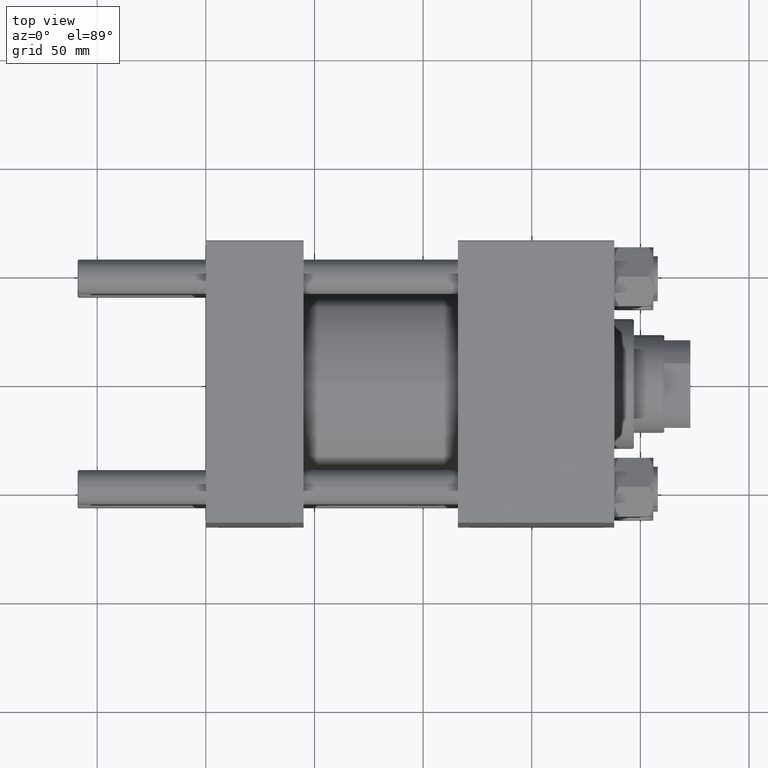
[diagram: clean part render]
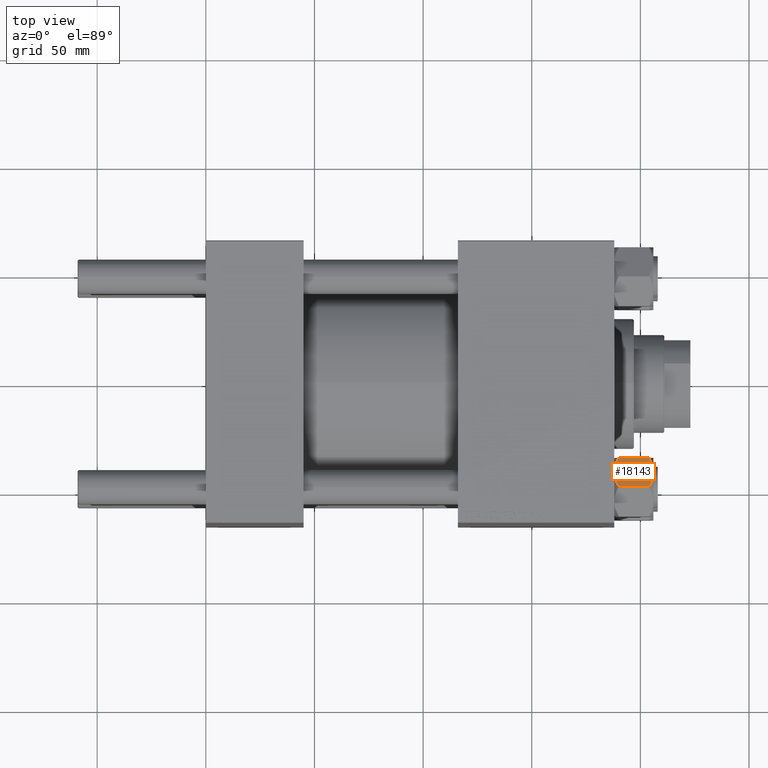
[diagram: same view with one face highlighted and labeled with its STEP entity id]
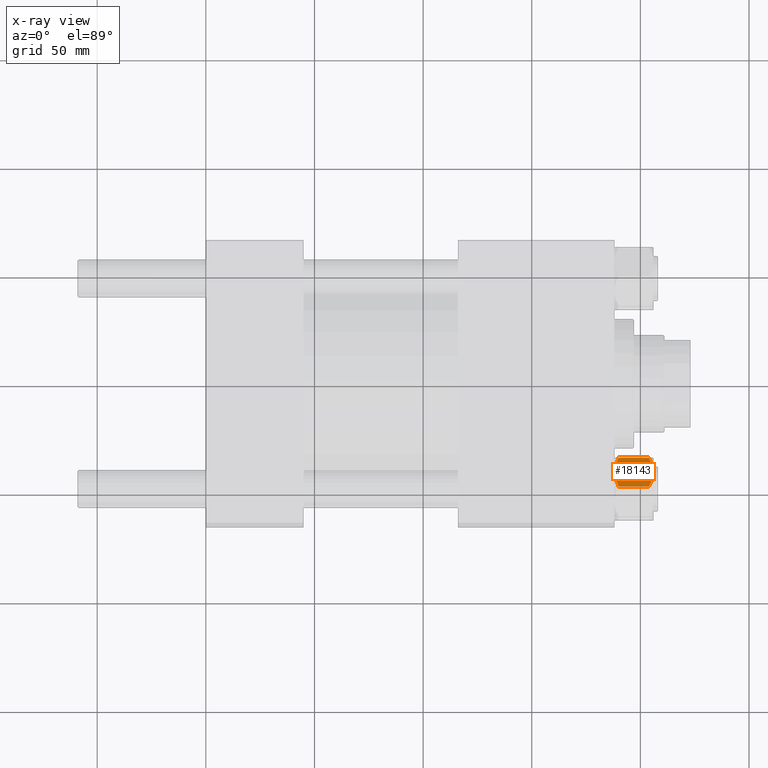
[diagram: x-ray of the same camera — body ghosted, the highlighted face saturated]
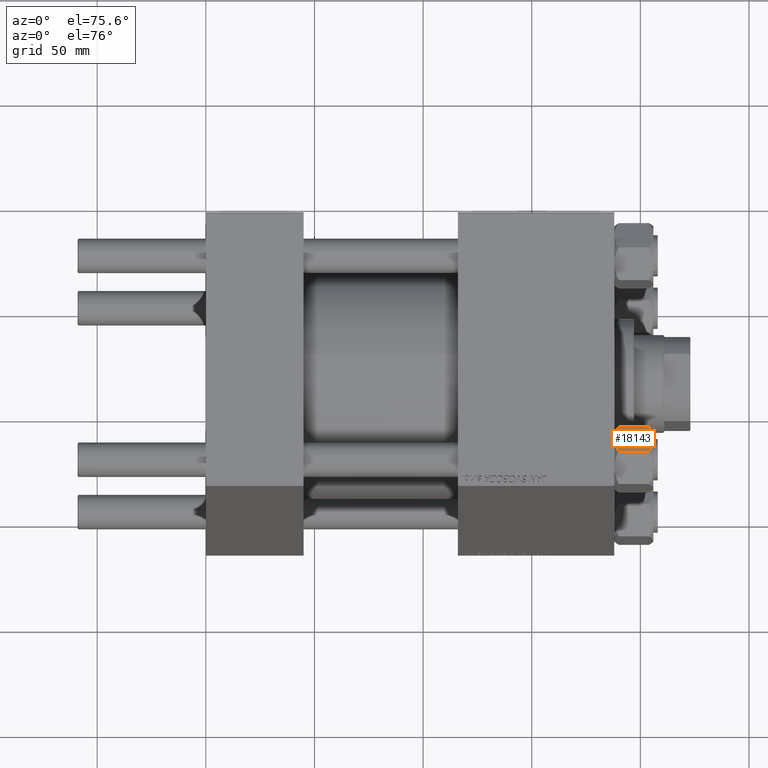
[diagram: same view with one face highlighted and labeled with its STEP entity id]
A machine part, top view. The second image highlights one B-rep face of the part: STEP entity #18143.
The next image is the same camera in x-ray: the body ghosted, the highlighted face saturated — about 0% of this face is hidden behind the body in this view.
A second angle (auxiliary view) of the same face is appended — the face is thin or edge-on in the first view.
In plain terms, the highlighted planar face has unit normal (-0, -0.5, -0.866).
Its self-contained STEP definition (entity closure, byte-faithful):
#648 = CARTESIAN_POINT ( 'NONE',  ( 9.114548888011784200, 11.26777185211903642, -17.08577173959729834 ) ) ;
#692 = ORIENTED_EDGE ( 'NONE', *, *, #7000, .F. ) ;
#1023 = CARTESIAN_POINT ( 'NONE',  ( 14.31545111198821196, 2.259544954993908394, -0.9142282604026947812 ) ) ;
#1061 = VERTEX_POINT ( 'NONE', #23839 ) ;
#1633 = B_SPLINE_CURVE_WITH_KNOTS ( 'NONE', 3,
 ( #27065, #4462, #648, #27815, #23501, #12581, #4708, #42302 ),
 .UNSPECIFIED., .F., .F.,
 ( 4, 2, 2, 4 ),
 ( 4.472842641837737786E-07, 0.003945636373369299649, 0.005918230917921855731, 0.007890825462474411814 ),
 .UNSPECIFIED. ) ;
#2462 = EDGE_CURVE ( 'NONE', #36291, #18161, #12582, .T. ) ;
#2475 = CARTESIAN_POINT ( 'NONE',  ( 11.71499999999999808, 6.763658403556471299, -18.00000000000000000 ) ) ;
#2514 = PLANE ( 'NONE',  #10958 ) ;
#3685 = CARTESIAN_POINT ( 'NONE',  ( 14.30591678195075822, 2.276058899034911320, -17.05261278537718539 ) ) ;
#3996 = VERTEX_POINT ( 'NONE', #4825 ) ;
#4439 = CARTESIAN_POINT ( 'NONE',  ( 11.71499999999999808, 6.763658403556471299, -18.00000000000000000 ) ) ;
#4462 = CARTESIAN_POINT ( 'NONE',  ( 8.502393313253756801, 12.32805640973648131, -16.58801072835992585 ) ) ;
#4708 = CARTESIAN_POINT ( 'NONE',  ( 11.38181071908714337, 7.340759166634874155, -17.99999999999999289 ) ) ;
#4825 = CARTESIAN_POINT ( 'NONE',  ( 7.903528262322678799, 13.36532110482642466, -16.00000000000000000 ) ) ;
#4866 = CARTESIAN_POINT ( 'NONE',  ( 7.809999999999995168, 13.52731680711294082, -1.999999999999998224 ) ) ;
#5263 = VECTOR ( 'NONE', #25054, 1000.000000000000000 ) ;
#5826 = DIRECTION ( 'NONE',  ( 0.5000000000000004441, -0.8660254037844383745, 0.000000000000000000 ) ) ;
#5925 = VECTOR ( 'NONE', #32548, 1000.000000000000114 ) ;
#6414 = VERTEX_POINT ( 'NONE', #47052 ) ;
#6754 = ORIENTED_EDGE ( 'NONE', *, *, #22801, .F. ) ;
#7000 = EDGE_CURVE ( 'NONE', #6414, #3996, #44611, .T. ) ;
#7335 = EDGE_CURVE ( 'NONE', #48386, #30786, #36681, .T. ) ;
#7907 = CARTESIAN_POINT ( 'NONE',  ( 12.04818928091285635, 6.186557640478070219, -1.789310043688750938E-15 ) ) ;
#8004 = CARTESIAN_POINT ( 'NONE',  ( 13.99051971937273819, 2.822342635978020819, -17.26828031537188934 ) ) ;
#8893 = CARTESIAN_POINT ( 'NONE',  ( 13.36540581434586983, 3.905071680002333512, -0.3836066851120609744 ) ) ;
#9075 = EDGE_CURVE ( 'NONE', #23734, #1061, #16304, .T. ) ;
#9933 = ORIENTED_EDGE ( 'NONE', *, *, #43586, .T. ) ;
#10325 = CARTESIAN_POINT ( 'NONE',  ( 7.809999999999995168, 13.52731680711294082, -16.00000000000000000 ) ) ;
#10958 = AXIS2_PLACEMENT_3D ( 'NONE', #41122, #32268, #5826 ) ;
#10959 = CARTESIAN_POINT ( 'NONE',  ( 7.809999999999995168, 13.52731680711294082, -16.00000000000000000 ) ) ;
#12211 = CARTESIAN_POINT ( 'NONE',  ( 14.92760668674625180, 1.199260397376467502, -1.411989271640067489 ) ) ;
#12581 = CARTESIAN_POINT ( 'NONE',  ( 11.04378428799594580, 7.926238119586004771, -17.94910618364698252 ) ) ;
#12582 = B_SPLINE_CURVE_WITH_KNOTS ( 'NONE', 3,
 ( #4439, #38220, #42282, #8004, #3685, #35179, #23481, #49898 ),
 .UNSPECIFIED., .F., .F.,
 ( 4, 2, 2, 4 ),
 ( 0.007890825462474411814, 0.01181022244528551722, 0.01376992093669107166, 0.01572961942809662783 ),
 .UNSPECIFIED. ) ;
#13102 = CARTESIAN_POINT ( 'NONE',  ( 15.62000000000000455, 5.009671660077301770E-15, -16.00000000000000000 ) ) ;
#13697 = CARTESIAN_POINT ( 'NONE',  ( 15.52647173767732447, 0.1619957022865230467, -16.00000000000000000 ) ) ;
#13851 = LINE ( 'NONE', #25272, #25474 ) ;
#14069 = DIRECTION ( 'NONE',  ( -0.5000000000000004441, 0.8660254037844383745, 0.000000000000000000 ) ) ;
#14811 = VECTOR ( 'NONE', #14069, 1000.000000000000114 ) ;
#15191 = VERTEX_POINT ( 'NONE', #13102 ) ;
#15315 = CARTESIAN_POINT ( 'NONE',  ( 9.124083218049234389, 11.25125790807803483, -0.9473872146228138336 ) ) ;
#15964 = CARTESIAN_POINT ( 'NONE',  ( 11.71499999999999808, 6.763658403556471299, 0.000000000000000000 ) ) ;
#16304 = LINE ( 'NONE', #4866, #5925 ) ;
#17693 = DIRECTION ( 'NONE',  ( 0.5000000000000004441, -0.8660254037844383745, 0.000000000000000000 ) ) ;
#18079 = EDGE_CURVE ( 'NONE', #1061, #48133, #27471, .T. ) ;
#18143 = ADVANCED_FACE ( 'NONE', ( #21071 ), #2514, .F. ) ;
#18161 = VERTEX_POINT ( 'NONE', #13697 ) ;
#18553 = EDGE_CURVE ( 'NONE', #18161, #15191, #50061, .T. ) ;
#18862 = CARTESIAN_POINT ( 'NONE',  ( 7.903528262322678799, 13.36532110482642466, -2.000000000000000000 ) ) ;
#21071 = FACE_OUTER_BOUND ( 'NONE', #49498, .T. ) ;
#22801 = EDGE_CURVE ( 'NONE', #3996, #36291, #1633, .T. ) ;
#23481 = CARTESIAN_POINT ( 'NONE',  ( 15.22736220980735489, 0.6800686015852402955, -16.29368822085855228 ) ) ;
#23501 = CARTESIAN_POINT ( 'NONE',  ( 10.38662926516871998, 9.064464007571849891, -17.75691532989869614 ) ) ;
#23675 = CARTESIAN_POINT ( 'NONE',  ( 11.71499999999999808, 6.763658403556471299, 0.000000000000000000 ) ) ;
#23734 = VERTEX_POINT ( 'NONE', #47950 ) ;
#23839 = CARTESIAN_POINT ( 'NONE',  ( 15.52647173767732447, 0.1619957022865230467, -2.000000000000000000 ) ) ;
#24379 = CARTESIAN_POINT ( 'NONE',  ( 13.04337073483127973, 4.462852799541093596, -0.2430846701013001376 ) ) ;
#25054 = DIRECTION ( 'NONE',  ( -0.000000000000000000, -0.000000000000000000, 1.000000000000000000 ) ) ;
#25272 = CARTESIAN_POINT ( 'NONE',  ( 15.62000000000000455, 5.009671660077301770E-15, -18.00000000000000000 ) ) ;
#25474 = VECTOR ( 'NONE', #40772, 1000.000000000000000 ) ;
#26505 = EDGE_CURVE ( 'NONE', #48133, #48386, #41877, .T. ) ;
#27065 = CARTESIAN_POINT ( 'NONE',  ( 7.903528262322678799, 13.36532110482642466, -16.00000000000000000 ) ) ;
#27471 = B_SPLINE_CURVE_WITH_KNOTS ( 'NONE', 3,
 ( #43690, #12211, #1023, #8893, #24379, #42699, #7907, #39875 ),
 .UNSPECIFIED., .F., .F.,
 ( 4, 2, 2, 4 ),
 ( 4.472842642033888912E-07, 0.003945636373369316996, 0.005918230917921872211, 0.007890825462474429161 ),
 .UNSPECIFIED. ) ;
#27815 = CARTESIAN_POINT ( 'NONE',  ( 10.06459418565412456, 9.622245127110609531, -17.61639331488793303 ) ) ;
#28370 = CARTESIAN_POINT ( 'NONE',  ( 7.809999999999995168, 13.52731680711294082, -18.00000000000000000 ) ) ;
#29622 = VECTOR ( 'NONE', #46003, 1000.000000000000114 ) ;
#30295 = CARTESIAN_POINT ( 'NONE',  ( 11.05297796109638142, 7.910314210667887203, -1.616138863361205047E-15 ) ) ;
#30786 = VERTEX_POINT ( 'NONE', #48134 ) ;
#30995 = VECTOR ( 'NONE', #17693, 1000.000000000000114 ) ;
#31322 = CARTESIAN_POINT ( 'NONE',  ( 9.439480280627261521, 10.70497417113492489, -0.7317196846281144307 ) ) ;
#32268 = DIRECTION ( 'NONE',  ( -0.8660254037844383745, -0.5000000000000004441, 0.000000000000000000 ) ) ;
#32417 = ORIENTED_EDGE ( 'NONE', *, *, #26505, .F. ) ;
#32548 = DIRECTION ( 'NONE',  ( -0.5000000000000004441, 0.8660254037844383745, 0.000000000000000000 ) ) ;
#35179 = CARTESIAN_POINT ( 'NONE',  ( 14.92394044919337581, 1.205610507090648209, -16.56553707812498999 ) ) ;
#36291 = VERTEX_POINT ( 'NONE', #2475 ) ;
#36681 = LINE ( 'NONE', #45299, #14811 ) ;
#38220 = CARTESIAN_POINT ( 'NONE',  ( 12.37702203890362362, 5.617002596445060725, -17.99999999999999645 ) ) ;
#38814 = ORIENTED_EDGE ( 'NONE', *, *, #2462, .F. ) ;
#38940 = ORIENTED_EDGE ( 'NONE', *, *, #41288, .F. ) ;
#39182 = CARTESIAN_POINT ( 'NONE',  ( 8.202637790192643052, 12.84724820552770197, -1.706311779141444163 ) ) ;
#39308 = ORIENTED_EDGE ( 'NONE', *, *, #18079, .F. ) ;
#39875 = CARTESIAN_POINT ( 'NONE',  ( 11.71499999999999808, 6.763658403556471299, 0.000000000000000000 ) ) ;
#40772 = DIRECTION ( 'NONE',  ( -0.000000000000000000, -0.000000000000000000, 1.000000000000000000 ) ) ;
#41122 = CARTESIAN_POINT ( 'NONE',  ( 7.809999999999995168, 13.52731680711294082, -18.00000000000000000 ) ) ;
#41288 = EDGE_CURVE ( 'NONE', #15191, #23734, #13851, .T. ) ;
#41877 = B_SPLINE_CURVE_WITH_KNOTS ( 'NONE', 3,
 ( #23675, #30295, #45785, #31322, #15315, #49844, #39182, #18862 ),
 .UNSPECIFIED., .F., .F.,
 ( 4, 2, 2, 4 ),
 ( 0.007890825462474429161, 0.01181022244528553977, 0.01376992093669109421, 0.01572961942809664865 ),
 .UNSPECIFIED. ) ;
#42282 = CARTESIAN_POINT ( 'NONE',  ( 13.02784502466562166, 4.489744118371596038, -17.80281335400754017 ) ) ;
#42302 = CARTESIAN_POINT ( 'NONE',  ( 11.71499999999999808, 6.763658403556471299, -18.00000000000000000 ) ) ;
#42699 = CARTESIAN_POINT ( 'NONE',  ( 12.38621571200405391, 5.601078687526936939, -0.05089381635301767209 ) ) ;
#42924 = ORIENTED_EDGE ( 'NONE', *, *, #9075, .F. ) ;
#43240 = ORIENTED_EDGE ( 'NONE', *, *, #18553, .F. ) ;
#43586 = EDGE_CURVE ( 'NONE', #6414, #30786, #44367, .T. ) ;
#43690 = CARTESIAN_POINT ( 'NONE',  ( 15.52647173767732447, 0.1619957022865230467, -2.000000000000000000 ) ) ;
#44367 = LINE ( 'NONE', #28370, #5263 ) ;
#44611 = LINE ( 'NONE', #10325, #30995 ) ;
#45299 = CARTESIAN_POINT ( 'NONE',  ( 7.809999999999995168, 13.52731680711294082, -1.999999999999998224 ) ) ;
#45356 = CARTESIAN_POINT ( 'NONE',  ( 7.903528262322678799, 13.36532110482642466, -2.000000000000000000 ) ) ;
#45785 = CARTESIAN_POINT ( 'NONE',  ( 10.40215497533437450, 9.037572688741349225, -0.1971866459924571102 ) ) ;
#46003 = DIRECTION ( 'NONE',  ( 0.5000000000000004441, -0.8660254037844383745, 0.000000000000000000 ) ) ;
#47052 = CARTESIAN_POINT ( 'NONE',  ( 7.809999999999994280, 13.52731680711294082, -16.00000000000000000 ) ) ;
#47950 = CARTESIAN_POINT ( 'NONE',  ( 15.62000000000000455, 5.009671660077301770E-15, -1.999999999999998224 ) ) ;
#48133 = VERTEX_POINT ( 'NONE', #15964 ) ;
#48134 = CARTESIAN_POINT ( 'NONE',  ( 7.809999999999994280, 13.52731680711294082, -1.999999999999998224 ) ) ;
#48386 = VERTEX_POINT ( 'NONE', #45356 ) ;
#49498 = EDGE_LOOP ( 'NONE', ( #692, #9933, #49793, #32417, #39308, #42924, #38940, #43240, #38814, #6754 ) ) ;
#49793 = ORIENTED_EDGE ( 'NONE', *, *, #7335, .F. ) ;
#49844 = CARTESIAN_POINT ( 'NONE',  ( 8.506059550806616798, 12.32170630002229927, -1.434462921875002239 ) ) ;
#49898 = CARTESIAN_POINT ( 'NONE',  ( 15.52647173767732447, 0.1619957022865230467, -16.00000000000000000 ) ) ;
#50061 = LINE ( 'NONE', #10959, #29622 ) ;